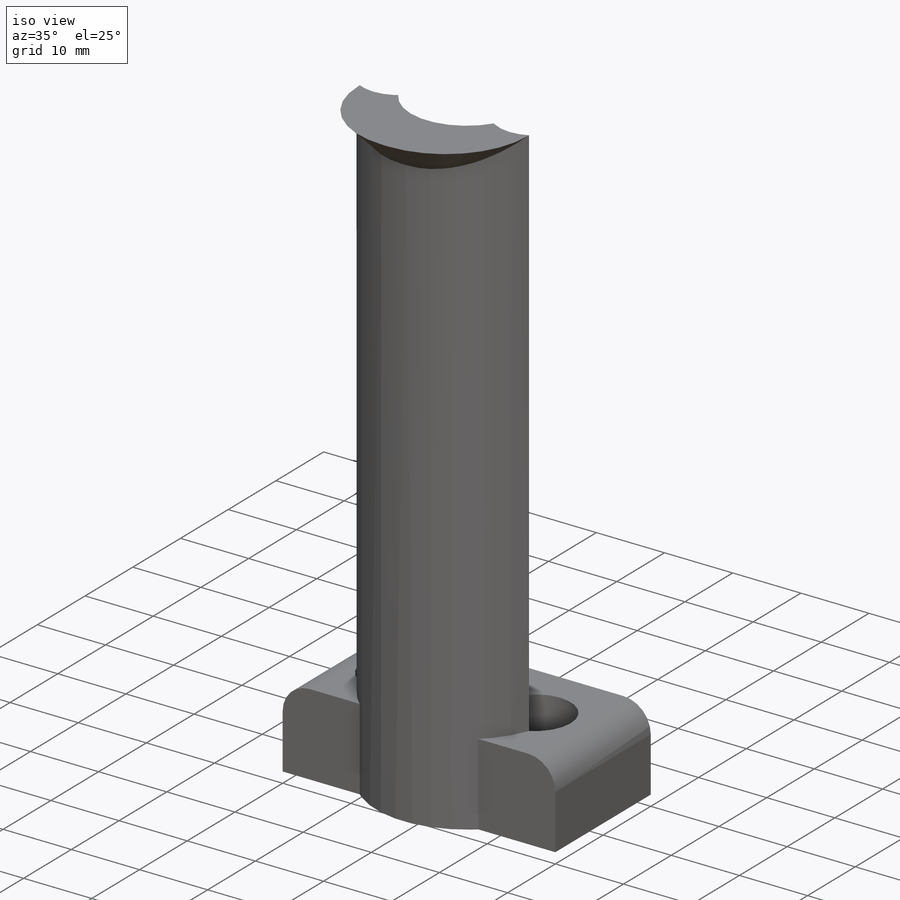
[diagram: iso view]
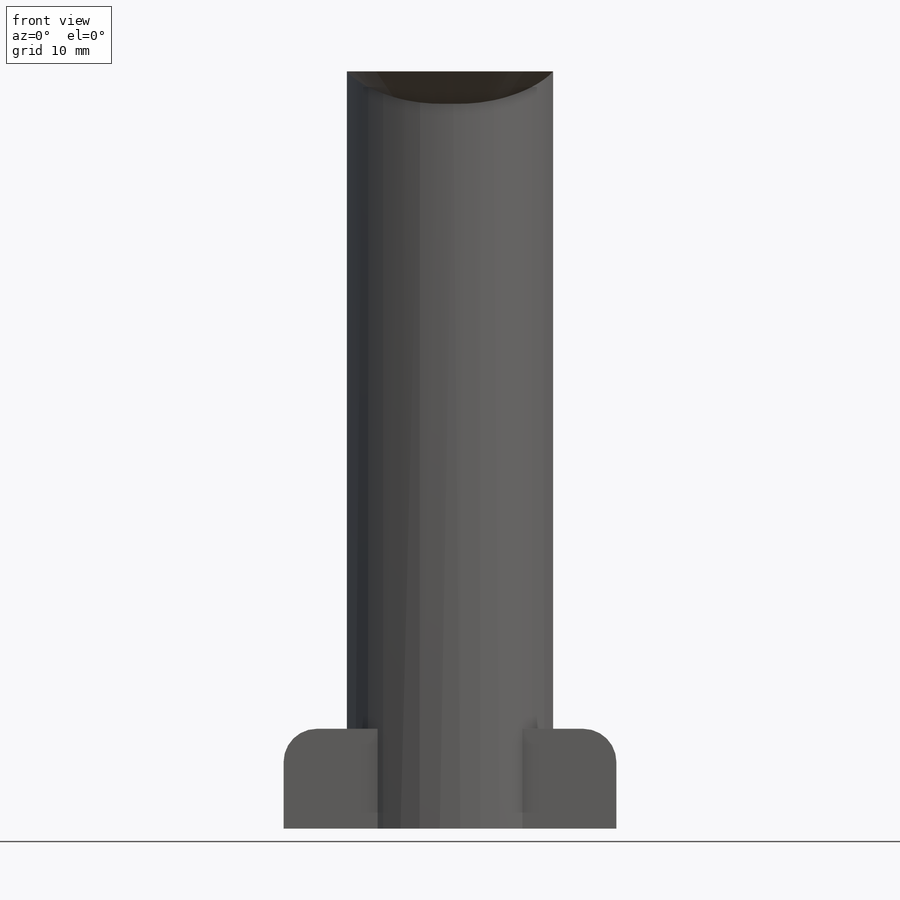
[diagram: front view]
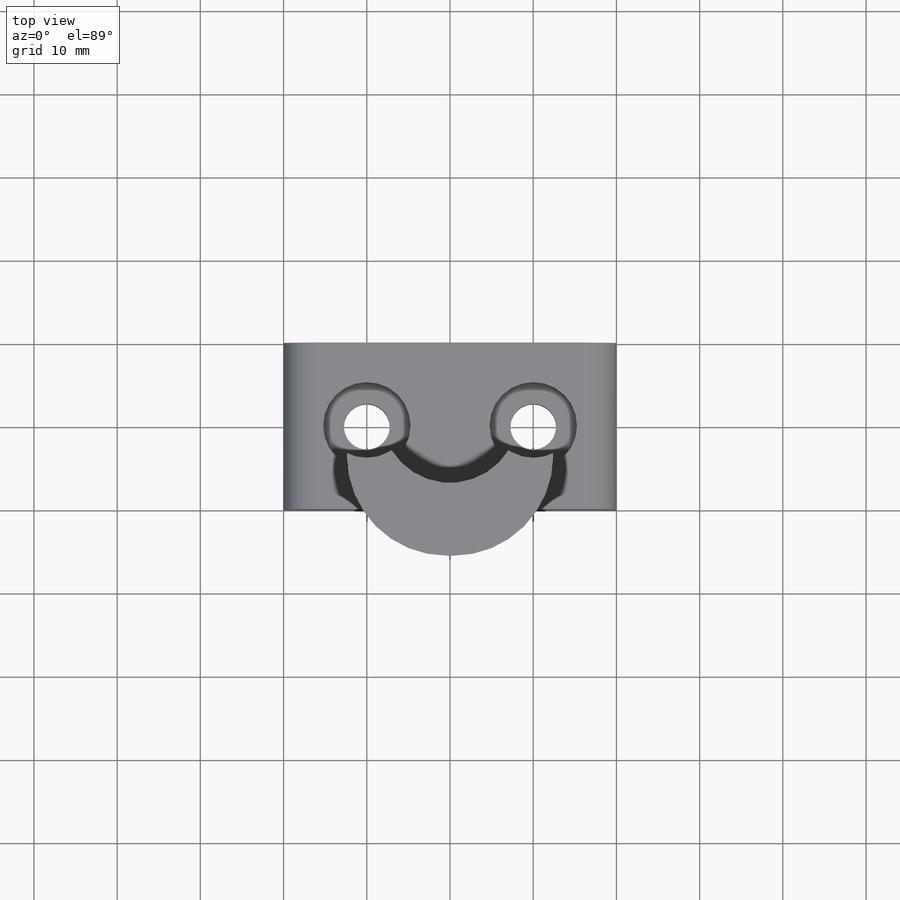
[diagram: top view]
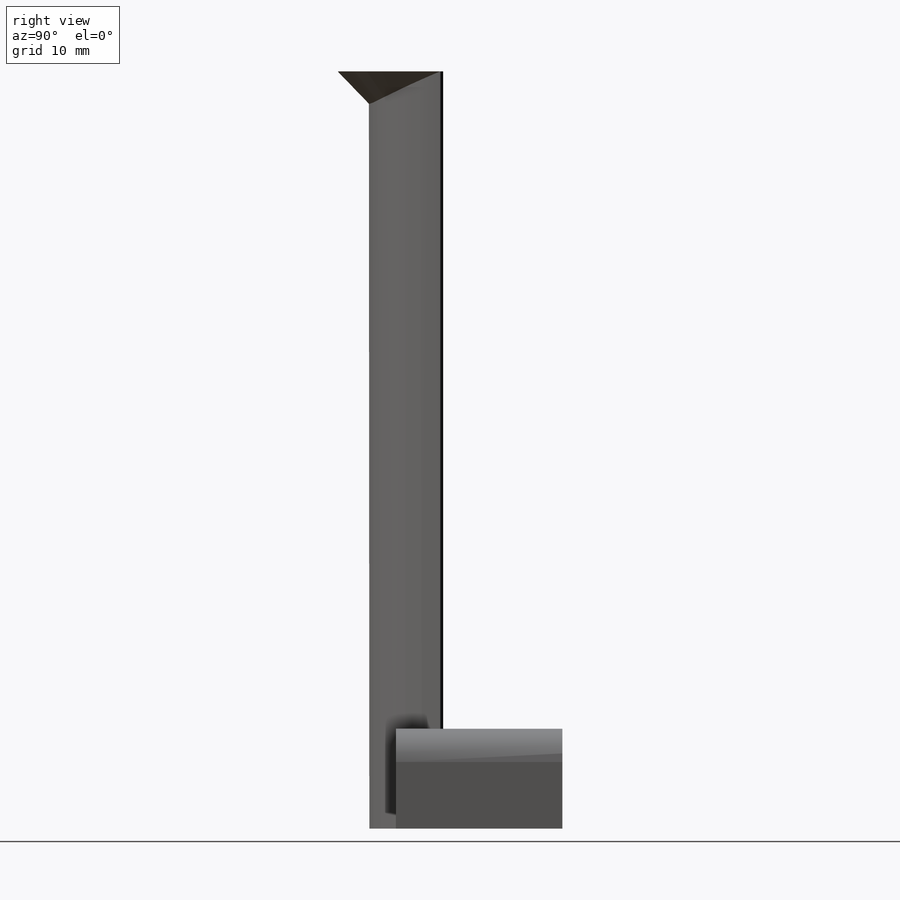
[diagram: right view]
SOLIDWORKS PART (.sldprt)
format: sldprt  version: not decoded by parser v0  size: 225,280 bytes
history: native  units: mm
features: sketch x6, extrude x3, material x1, hole x1, fillet x1 (+13 scaffold rows collapsed)
feature tree (25):
  scaffold x13  (default folders/planes/origin — collapsed)
  material  "Material <not specified>"
  sketch  "Sketch1"  dims[D1=40.0mm D2=20.0mm]
  extrude  "Boss-Extrude1"  Depth=12mm
  hole  "CBORE for M5 SHCS1"  Diameter=5.5mm Depth=12mm
  sketch  "Sketch3"  dims[D1=10.0mm D2=10.0mm]
  sketch  "Sketch2"  dims[hole-wizard template sketch: 42 standard entries collapsed; hole parameters kept: c12.Thru Hole Depth=12.0mm c12.C'Bore Dia.=10.5mm c12.C'Bore Depth=6.0mm]
  sketch  "Sketch4"  dims[c1.D1=18.0mm c1.D2=16.5mm c2.D1=10.0mm c2.D3=13.25mm c3.D1=5.0mm]
  extrude  "Boss-Extrude2"  Depth=79mm
  sketch  "Sketch5"  dims[D2=17.0mm D1=0.0mm]
  fillet  "Fillet1"  Radius=4mm
  sketch  "Sketch6"  dims[D1=0.0mm]
  extrude  "Boss-Extrude5"  Depth=4mm
decode coverage: 11 of 11 modeling features carry decoded parameters
note: ~ marks probable driven/reference dimensions
note: suppression state not decoded; provenance and decode notes live in map.json
